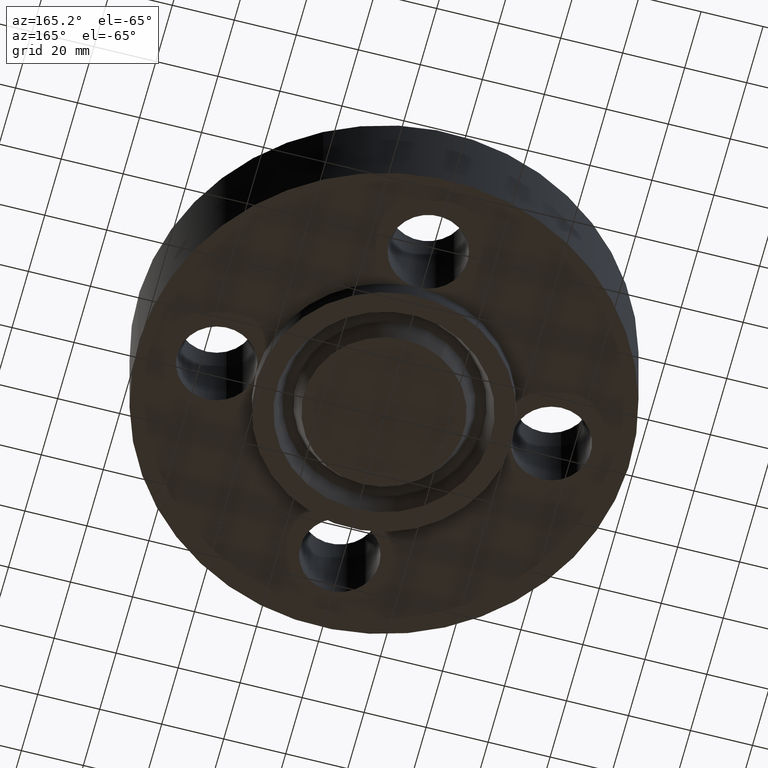
[diagram: clean part render]
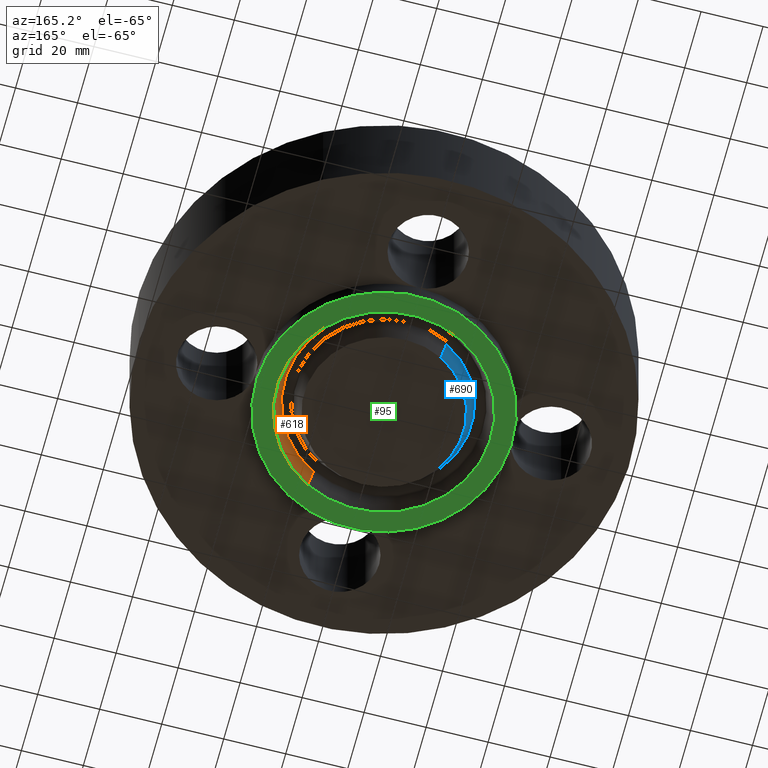
[diagram: same view with three faces highlighted in distinct colors, each labeled with its STEP entity id]
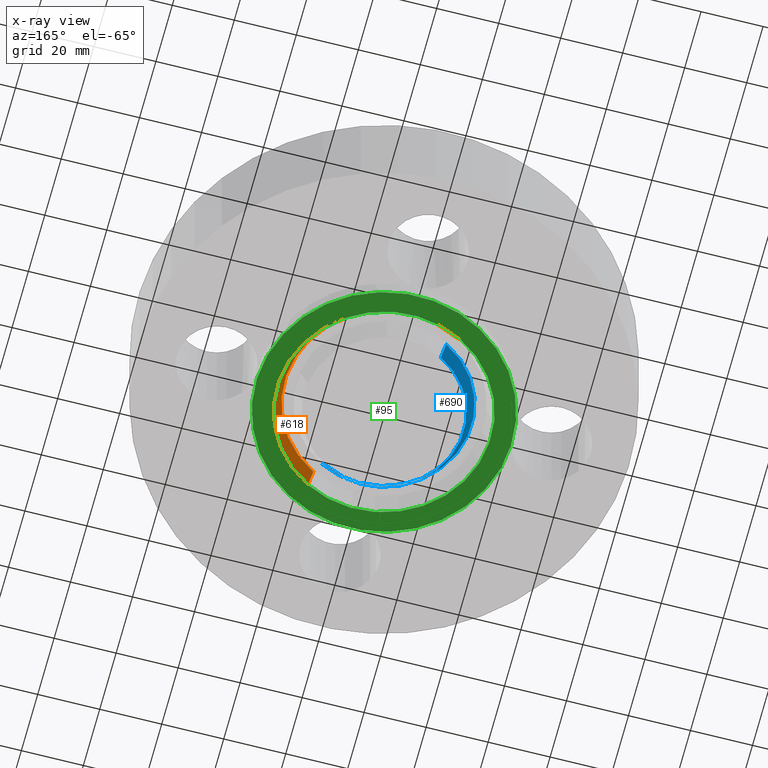
[diagram: x-ray of the same camera — body ghosted, the three highlighted faces saturated]
A machine part, auxiliary view with three faces highlighted in distinct colors.
The next image is the same camera in x-ray (body ghosted, the three faces saturated) — at least one of them is partly hidden behind the body in this view.
Their STEP definitions:

[orange] entity #618 — the highlighted conical surface has half-angle 23 deg.
#88=AXIS2_PLACEMENT_3D('Circle Axis2P3D',#86,#87,$) ;
#553=AXIS2_PLACEMENT_3D('Cone Axis2P3D',#550,#551,#552) ;
#574=AXIS2_PLACEMENT_3D('Circle Axis2P3D',#572,#573,$) ;
#81=CARTESIAN_POINT('Vertex',(0.651779019735,-1.19307349289,-0.250000000001)) ;
#83=CARTESIAN_POINT('Vertex',(-0.651779019735,1.19307349289,-0.250000000001)) ;
#86=CARTESIAN_POINT('Axis2P3D Location',(6.99353086378E-017,2.79741234551E-016,-0.250000000001)) ;
#519=CARTESIAN_POINT('Vertex',(-0.604746652387,1.10698132194,-0.0188873350169)) ;
#521=CARTESIAN_POINT('Vertex',(0.604746652387,-1.10698132194,-0.0188873350169)) ;
#550=CARTESIAN_POINT('Axis2P3D Location',(0.,0.,-0.0188873350169)) ;
#555=CARTESIAN_POINT('Line Origine',(-0.628262836061,1.15002740742,-0.134443667509)) ;
#560=CARTESIAN_POINT('Line Origine',(0.628262836061,-1.15002740742,-0.134443667509)) ;
#572=CARTESIAN_POINT('Axis2P3D Location',(0.,0.,-0.0188873350169)) ;
#87=DIRECTION('Axis2P3D Direction',(0.,0.,-0.0393700787402)) ;
#551=DIRECTION('Axis2P3D Direction',(-0.,-0.,-0.0393700787402)) ;
#552=DIRECTION('Axis2P3D XDirection',(-0.0188750212049,0.0345504945626,0.)) ;
#556=DIRECTION('Vector Direction',(-0.00737505833565,0.0134999537303,-0.0362403485611)) ;
#561=DIRECTION('Vector Direction',(0.00737505833565,-0.0134999537303,-0.0362403485611)) ;
#573=DIRECTION('Axis2P3D Direction',(0.,0.,0.0393700787402)) ;
#557=VECTOR('Line Direction',#556,0.0393700787402) ;
#562=VECTOR('Line Direction',#561,0.0393700787402) ;
#613=ORIENTED_EDGE('',*,*,#90,.T.) ;
#614=ORIENTED_EDGE('',*,*,#564,.T.) ;
#615=ORIENTED_EDGE('',*,*,#576,.T.) ;
#616=ORIENTED_EDGE('',*,*,#559,.F.) ;
#618=ADVANCED_FACE('PartBody',(#617),#554,.F.) ;
#89=CIRCLE('generated circle',#88,1.35950000001) ;
#575=CIRCLE('generated circle',#574,1.26139849401) ;
#554=CONICAL_SURFACE('Cone',#553,1.26139849401,0.401425727959) ;
#90=EDGE_CURVE('',#84,#82,#89,.T.) ;
#559=EDGE_CURVE('',#84,#520,#558,.F.) ;
#564=EDGE_CURVE('',#82,#522,#563,.F.) ;
#576=EDGE_CURVE('',#522,#520,#575,.T.) ;
#612=EDGE_LOOP('',(#613,#614,#615,#616)) ;
#617=FACE_OUTER_BOUND('',#612,.T.) ;
#558=LINE('Line',#555,#557) ;
#563=LINE('Line',#560,#562) ;
#82=VERTEX_POINT('',#81) ;
#84=VERTEX_POINT('',#83) ;
#520=VERTEX_POINT('',#519) ;
#522=VERTEX_POINT('',#521) ;

[blue] entity #690 — the highlighted conical surface has half-angle 23 deg.
#51=AXIS2_PLACEMENT_3D('Circle Axis2P3D',#49,#50,$) ;
#652=AXIS2_PLACEMENT_3D('Circle Axis2P3D',#650,#651,$) ;
#665=AXIS2_PLACEMENT_3D('Cone Axis2P3D',#662,#663,#664) ;
#44=CARTESIAN_POINT('Vertex',(-0.486856634455,0.891185091603,-0.250000000001)) ;
#46=CARTESIAN_POINT('Vertex',(0.486856634455,-0.891185091603,-0.250000000001)) ;
#49=CARTESIAN_POINT('Axis2P3D Location',(1.39870617276E-016,-3.49676543189E-017,-0.250000000001)) ;
#628=CARTESIAN_POINT('Vertex',(0.533889001803,-0.977277262558,-0.0188873350169)) ;
#635=CARTESIAN_POINT('Vertex',(-0.533889001803,0.977277262558,-0.0188873350169)) ;
#650=CARTESIAN_POINT('Axis2P3D Location',(0.,0.,-0.0188873350169)) ;
#662=CARTESIAN_POINT('Axis2P3D Location',(0.,0.,-0.310000000001)) ;
#667=CARTESIAN_POINT('Line Origine',(-0.510372818129,0.93423117708,-0.134443667509)) ;
#672=CARTESIAN_POINT('Line Origine',(0.510372818129,-0.93423117708,-0.134443667509)) ;
#50=DIRECTION('Axis2P3D Direction',(0.,0.,-0.0393700787402)) ;
#651=DIRECTION('Axis2P3D Direction',(0.,0.,0.0393700787402)) ;
#663=DIRECTION('Axis2P3D Direction',(0.,0.,0.0393700787402)) ;
#664=DIRECTION('Axis2P3D XDirection',(-0.0188750212049,0.0345504945626,0.)) ;
#668=DIRECTION('Vector Direction',(-0.00737505833565,0.0134999537303,0.0362403485611)) ;
#673=DIRECTION('Vector Direction',(0.00737505833565,-0.0134999537303,0.0362403485611)) ;
#669=VECTOR('Line Direction',#668,0.0393700787402) ;
#674=VECTOR('Line Direction',#673,0.0393700787402) ;
#685=ORIENTED_EDGE('',*,*,#676,.F.) ;
#686=ORIENTED_EDGE('',*,*,#654,.F.) ;
#687=ORIENTED_EDGE('',*,*,#671,.T.) ;
#688=ORIENTED_EDGE('',*,*,#53,.F.) ;
#690=ADVANCED_FACE('PartBody',(#689),#666,.T.) ;
#52=CIRCLE('generated circle',#51,1.0155) ;
#653=CIRCLE('generated circle',#652,1.113601506) ;
#666=CONICAL_SURFACE('Cone',#665,0.990031511031,0.401425727959) ;
#53=EDGE_CURVE('',#47,#45,#52,.T.) ;
#654=EDGE_CURVE('',#636,#629,#653,.T.) ;
#671=EDGE_CURVE('',#636,#45,#670,.F.) ;
#676=EDGE_CURVE('',#629,#47,#675,.F.) ;
#684=EDGE_LOOP('',(#685,#686,#687,#688)) ;
#689=FACE_OUTER_BOUND('',#684,.T.) ;
#670=LINE('Line',#667,#669) ;
#675=LINE('Line',#672,#674) ;
#45=VERTEX_POINT('',#44) ;
#47=VERTEX_POINT('',#46) ;
#629=VERTEX_POINT('',#628) ;
#636=VERTEX_POINT('',#635) ;

[green] entity #95 — the highlighted planar face has unit normal (0, 0, -1).
#38=AXIS2_PLACEMENT_3D('Plane Axis2P3D',#35,#36,#37) ;
#61=AXIS2_PLACEMENT_3D('Circle Axis2P3D',#59,#60,$) ;
#70=AXIS2_PLACEMENT_3D('Circle Axis2P3D',#68,#69,$) ;
#79=AXIS2_PLACEMENT_3D('Circle Axis2P3D',#77,#78,$) ;
#88=AXIS2_PLACEMENT_3D('Circle Axis2P3D',#86,#87,$) ;
#35=CARTESIAN_POINT('Axis2P3D Location',(0.,0.,-0.250000000001)) ;
#59=CARTESIAN_POINT('Axis2P3D Location',(0.,0.,-0.250000000001)) ;
#63=CARTESIAN_POINT('Vertex',(0.779066500235,1.42607166308,-0.250000000001)) ;
#65=CARTESIAN_POINT('Vertex',(-0.779066500235,-1.42607166308,-0.250000000001)) ;
#68=CARTESIAN_POINT('Axis2P3D Location',(0.,0.,-0.250000000001)) ;
#77=CARTESIAN_POINT('Axis2P3D Location',(-3.49676543189E-017,0.,-0.250000000001)) ;
#81=CARTESIAN_POINT('Vertex',(0.651779019735,-1.19307349289,-0.250000000001)) ;
#83=CARTESIAN_POINT('Vertex',(-0.651779019735,1.19307349289,-0.250000000001)) ;
#86=CARTESIAN_POINT('Axis2P3D Location',(6.99353086378E-017,2.79741234551E-016,-0.250000000001)) ;
#36=DIRECTION('Axis2P3D Direction',(0.,0.,-0.0393700787402)) ;
#37=DIRECTION('Axis2P3D XDirection',(0.0393700787402,0.,0.)) ;
#60=DIRECTION('Axis2P3D Direction',(0.,0.,-0.0393700787402)) ;
#69=DIRECTION('Axis2P3D Direction',(0.,0.,-0.0393700787402)) ;
#78=DIRECTION('Axis2P3D Direction',(0.,0.,-0.0393700787402)) ;
#87=DIRECTION('Axis2P3D Direction',(0.,0.,-0.0393700787402)) ;
#74=ORIENTED_EDGE('',*,*,#67,.T.) ;
#75=ORIENTED_EDGE('',*,*,#72,.T.) ;
#92=ORIENTED_EDGE('',*,*,#85,.F.) ;
#93=ORIENTED_EDGE('',*,*,#90,.F.) ;
#94=FACE_BOUND('',#91,.T.) ;
#95=ADVANCED_FACE('PartBody',(#76,#94),#39,.T.) ;
#62=CIRCLE('generated circle',#61,1.62500000001) ;
#71=CIRCLE('generated circle',#70,1.62500000001) ;
#80=CIRCLE('generated circle',#79,1.35950000001) ;
#89=CIRCLE('generated circle',#88,1.35950000001) ;
#67=EDGE_CURVE('',#64,#66,#62,.T.) ;
#72=EDGE_CURVE('',#66,#64,#71,.T.) ;
#85=EDGE_CURVE('',#82,#84,#80,.T.) ;
#90=EDGE_CURVE('',#84,#82,#89,.T.) ;
#73=EDGE_LOOP('',(#74,#75)) ;
#91=EDGE_LOOP('',(#92,#93)) ;
#76=FACE_OUTER_BOUND('',#73,.T.) ;
#39=PLANE('',#38) ;
#64=VERTEX_POINT('',#63) ;
#66=VERTEX_POINT('',#65) ;
#82=VERTEX_POINT('',#81) ;
#84=VERTEX_POINT('',#83) ;